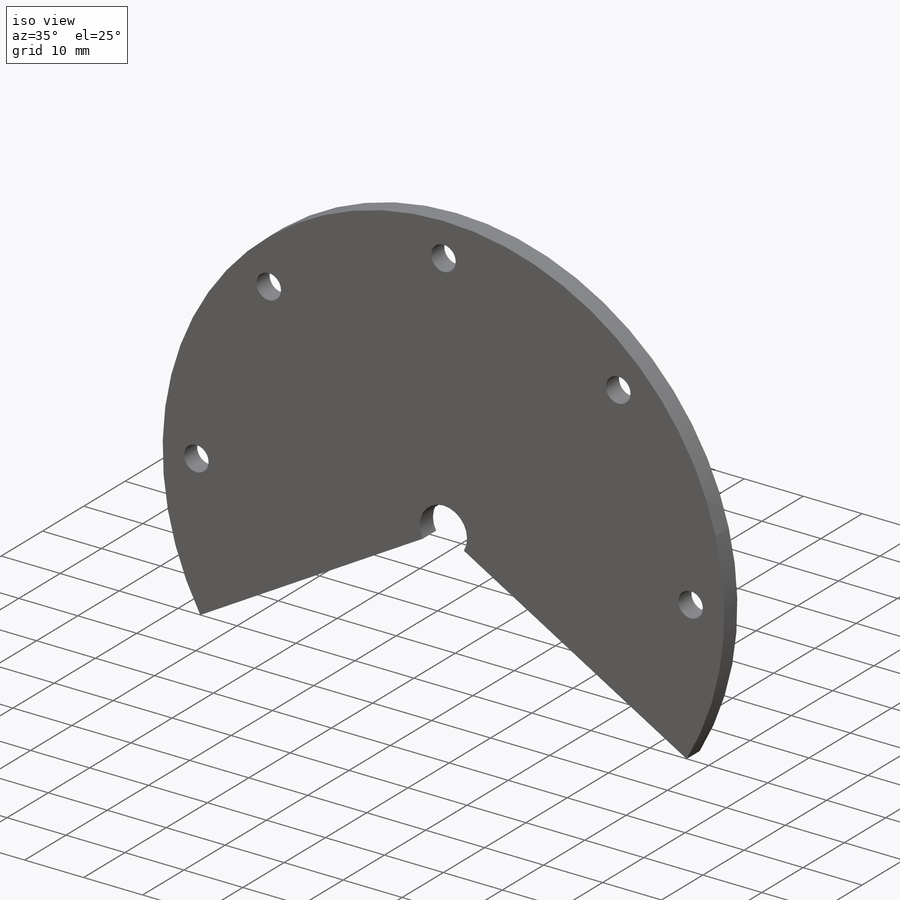
[diagram: iso view]
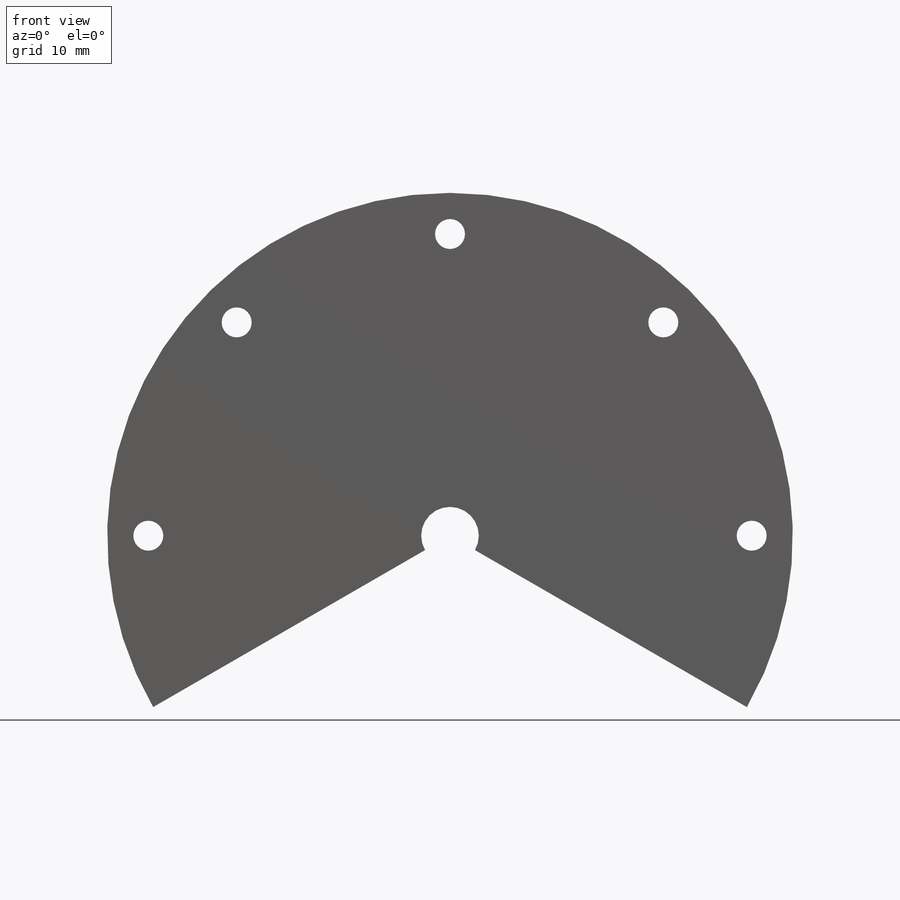
[diagram: front view]
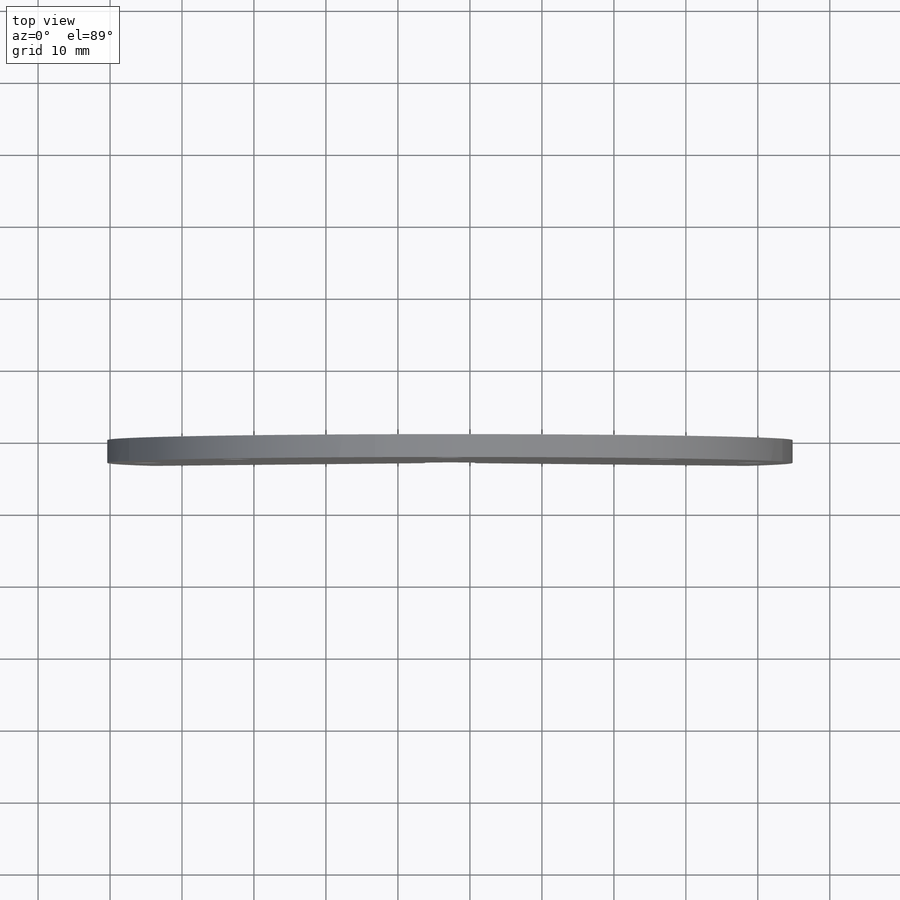
[diagram: top view]
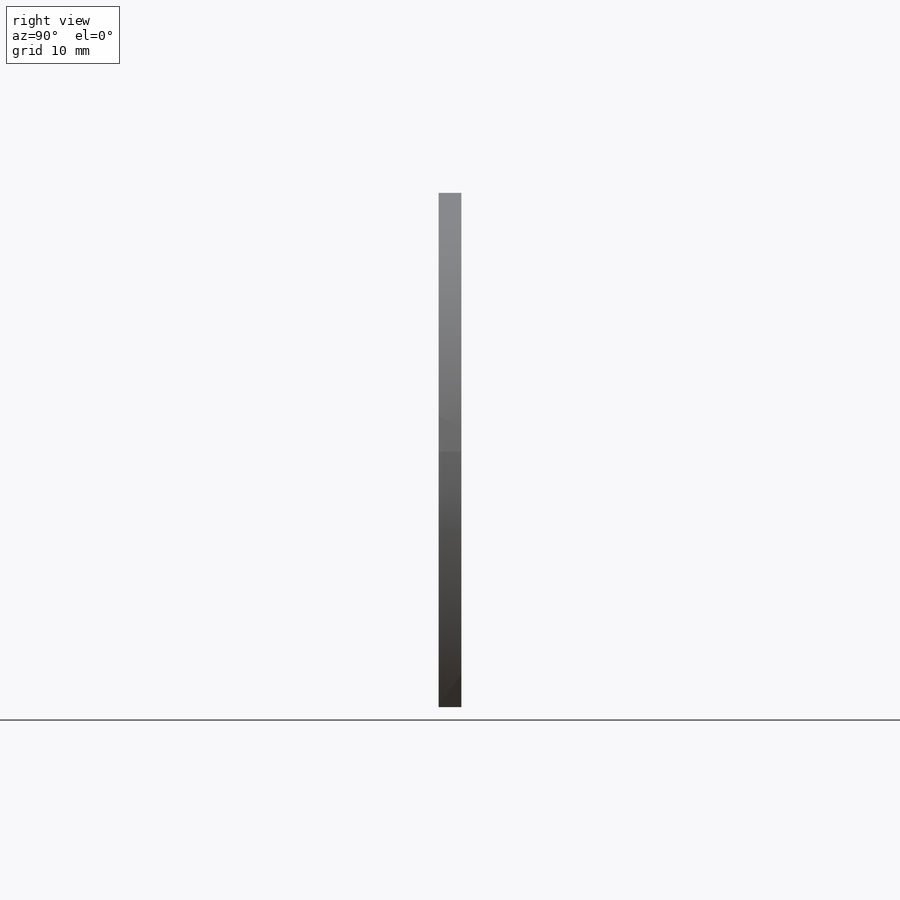
[diagram: right view]
SOLIDWORKS PART (.sldprt)
format: sldprt  version: not decoded by parser v0  size: 176,128 bytes
history: native  units: mm
features: sketch x3, cut_extrude x2, pattern_circular x2, material x1, extrude x1 (+13 scaffold rows collapsed)
feature tree (22):
  scaffold x13  (default folders/planes/origin — collapsed)
  material  "Material <not specified>"
  sketch  "Sketch1"  dims[c1.D3=8.0mm c1.D4=37.0mm c1.D7=3.0mm c1.D10=31.0mm c1.D12=~5.043203mm c1.D15=6.35mm c1.D8=31.0mm c1.D1=101.6mm c1.D6=4.1656mm c2.D1=95.25mm c2.D2=4.0mm c3.D1=88.9mm c3.D2=50.8mm c3.D5=7.0mm c3.D6=31.75mm c3.D8=76.2mm c4.D8=60.0deg c4.D9=~74.583204mm c5.D9=60.0deg c5.D11=31.2mm c5.D12=9.525mm c5.D13=31.1912mm c5.D14=9.525mm c5.D2=50.8mm c6.D11=12.7mm c6.D12=15.875mm c6.D13=6.35mm c6.D14=6.35mm c6.D9=19.05mm c6.D2=44.45mm c6.D4=15.5mm c6.D5=15.5mm c6.D6=15.5mm c6.D7=15.5mm c6.D8=15.5mm c7.D9=15.5mm c7.D10=15.5mm c7.D11=15.5mm]
  extrude  "Boss-Extrude1"  Depth=3.175mm
  sketch  "Sketch4"  dims[c1.D1=4.1656mm c1.D2=41.91mm c1.D3=~23.367103mm c2.D3=125.0deg c3.D3=0.0mm]
  cut_extrude  "Cut-Extrude2"  [1 undecoded]
  pattern_circular  "CirPattern3"  Count=3 Angle=45deg
  pattern_circular  "CirPattern4"  Count=3 Angle=45deg
  sketch  "Sketch5"  dims[c1.D1=47.625mm c2.D1=60.0deg c2.D2=47.625mm c3.D2=60.0deg]
  cut_extrude  "Cut-Extrude3"  [1 undecoded]
decode coverage: 6 of 8 modeling features carry decoded parameters
note: ~ marks probable driven/reference dimensions
note: 2 parameter values undecoded
note: suppression state not decoded; provenance and decode notes live in map.json
